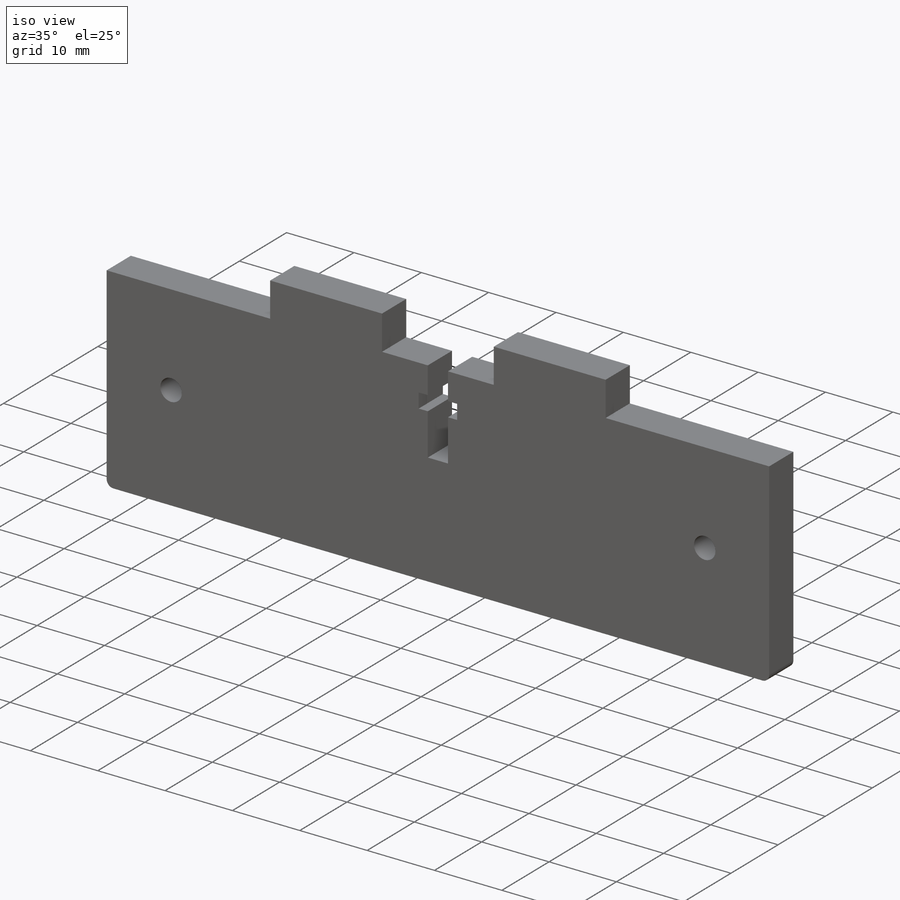
[diagram: iso view]
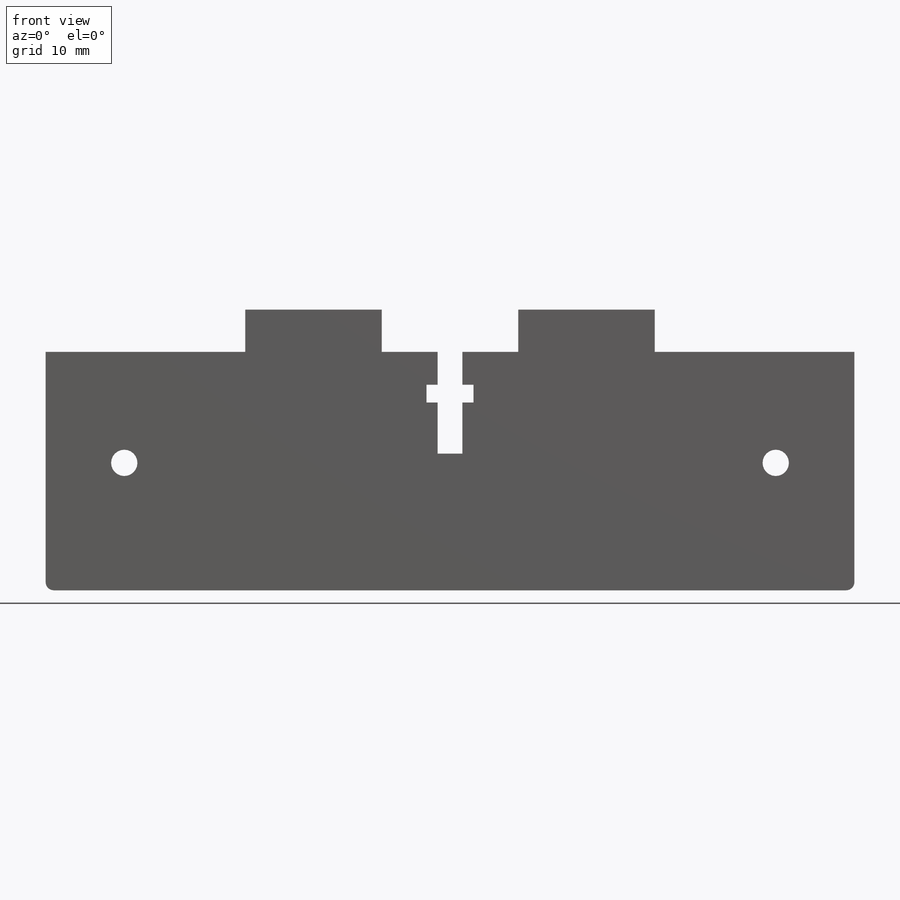
[diagram: front view]
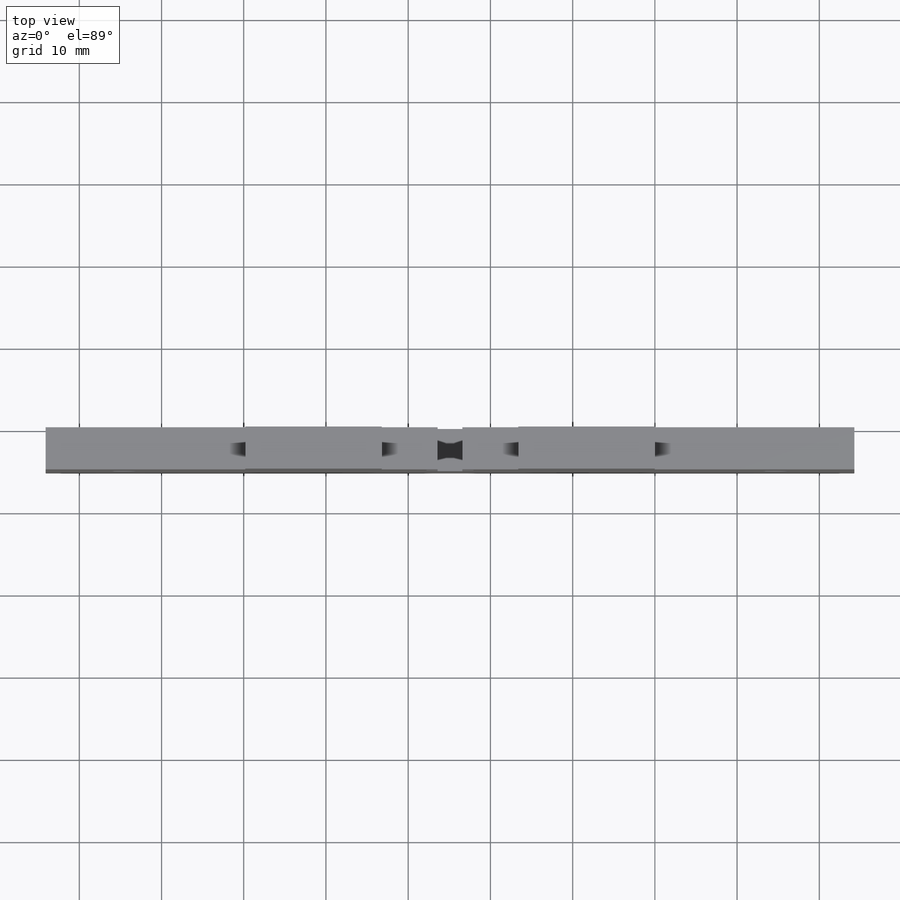
[diagram: top view]
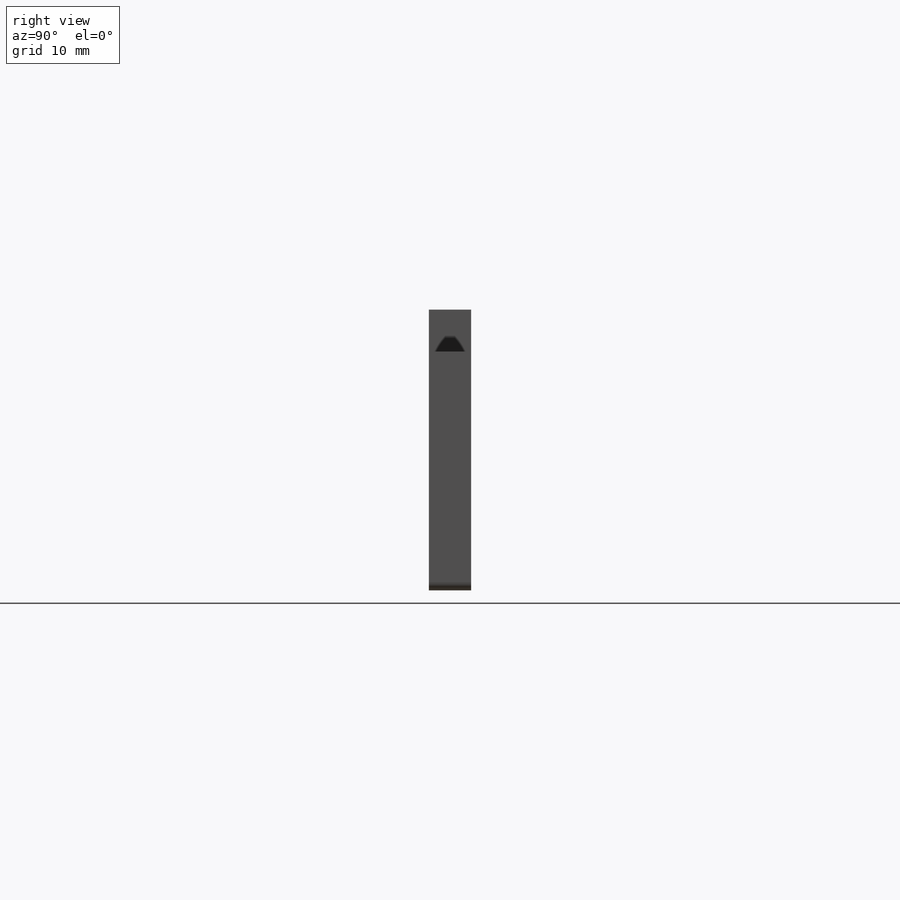
[diagram: right view]
SOLIDWORKS PART (.sldprt)
format: sldprt  version: not decoded by parser v0  size: 388,608 bytes
history: native  units: mm
features: sketch x5, extrude x2, material x1, hole x1, cut_extrude x1 (+11 scaffold rows collapsed)
feature tree (21):
  scaffold x11  (default folders/planes/origin — collapsed)
  material  "Material <not specified>"
  sketch  "Sketch1"  dims[D3=1.0mm D1=98.36mm D2=29.0mm]
  extrude  "Main"  Depth=5.13mm
  hole  "M3 Clearance Hole1"  Diameter=3.2mm Depth=5.13mm
  sketch  "Sketch3"  dims[D1=9.566mm D2=15.5mm D3=9.566mm D4=15.5mm]
  sketch  "Sketch2"  dims[hole-wizard template sketch: 60 standard entries collapsed; hole parameters kept: c18.Thru Hole Depth=5.13mm]
  sketch  "Sketch4"  dims[D1=16.6mm D3=49.8mm D4=24.28mm D2=2.0]
  extrude  "top tabs"  Depth=5.13mm
  sketch  "Sketch5"  dims[D1=~2.996998mm D2=~47.681501mm]
  cut_extrude  "t-slot"  [1 undecoded]
decode coverage: 8 of 9 modeling features carry decoded parameters
note: ~ marks probable driven/reference dimensions
note: 1 parameter value undecoded
note: suppression state not decoded; provenance and decode notes live in map.json
